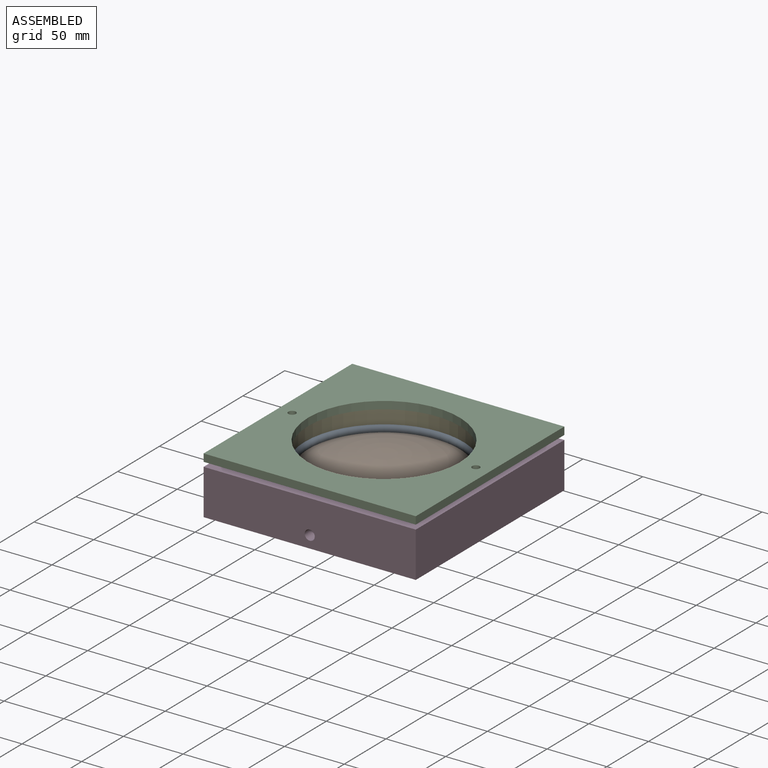
[diagram: assembled view]
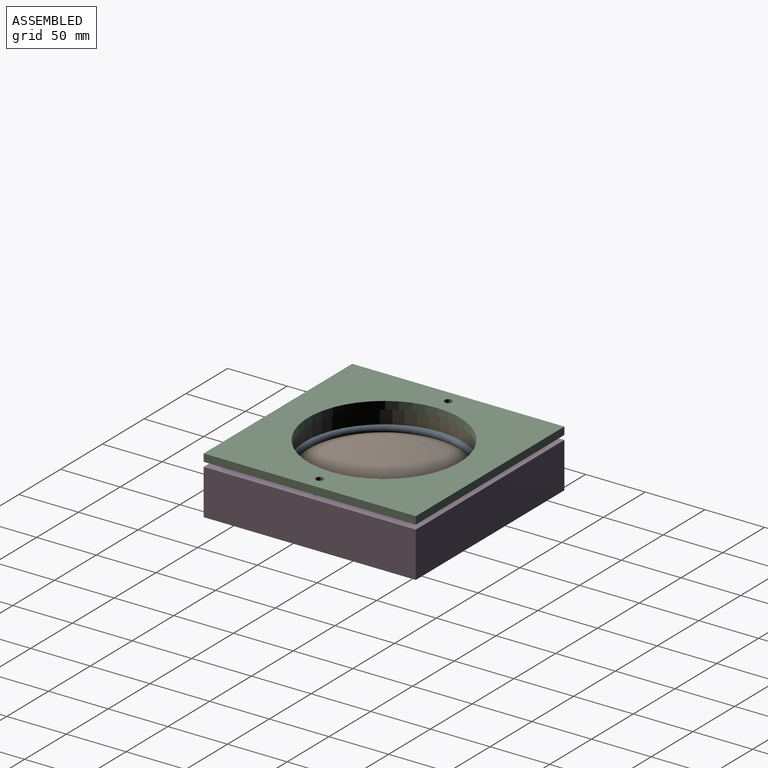
[diagram: assembled view, second angle]
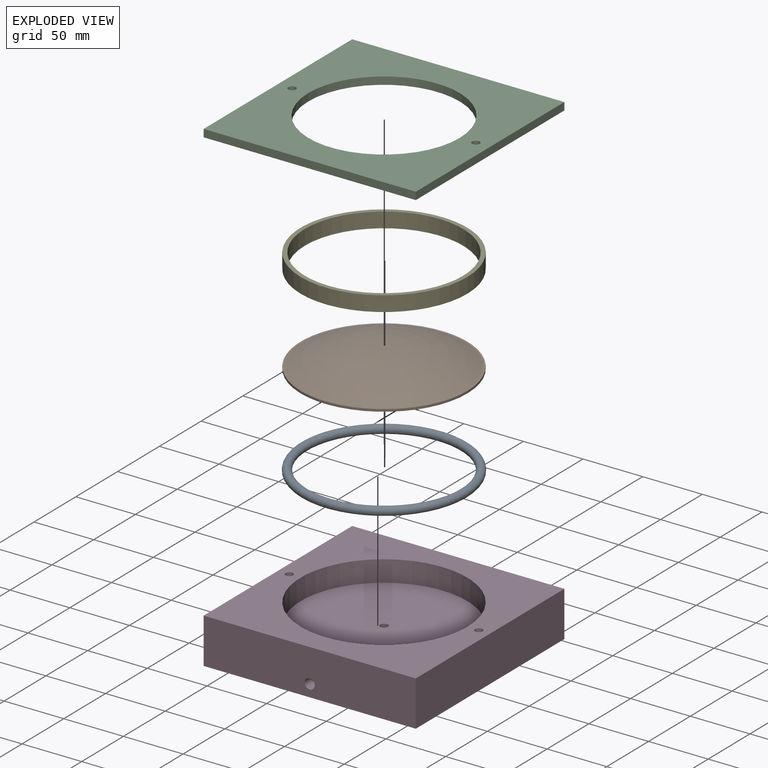
[diagram: exploded view]
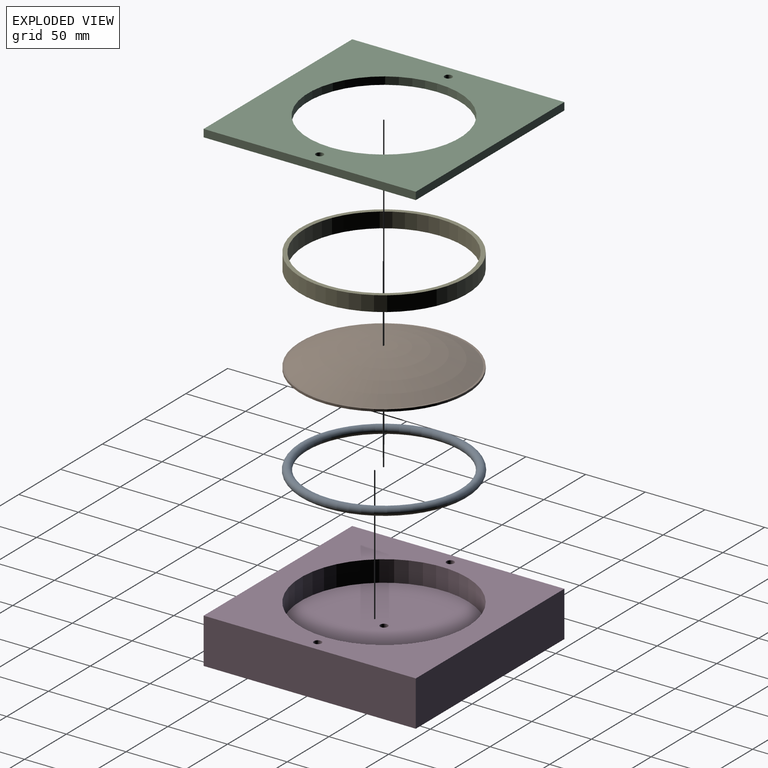
[diagram: exploded view, second angle]
ASSEMBLY  parts=5 mates=4
PART A: 1 faces, bbox 151.9x151.9x7 mm
  f0: torus R=66.67mm, axis (0,0,1), area 9193mm2
PART B: 5 faces, bbox 139.7x139.7x17.8 mm
  f0: plane 139.7x139.7mm, normal (0,0,1), area 661.6mm2, adj f1,f4
  f1: cylinder r=69.85mm len=139.7mm, axis (0,0,1), area 836.1mm2, adj f0,f2
  f2: plane 139.7x139.7mm, normal (0,0,-1), area 3702mm2, adj f1,f3
  f3: torus R=3.12mm, axis (0,0,1), area 12150.2mm2, adj f2
  f4: torus R=3.56mm, axis (0,0,1), area 15520.3mm2, adj f0
PART C: 9 faces, bbox 177.8x177.8x6.4 mm
  f0: plane 177.8x177.8mm, normal (0,0,1), area 18881.8mm2, adj f2,f3,f4,f5,f6,f7,f8
  f1: plane 177.8x177.8mm, normal (0,0,-1), area 18881.8mm2, adj f2,f3,f4,f5,f6,f7,f8
  f2: plane 177.8x6.35mm, normal (0,1,0), area 1129mm2, adj f0,f1,f3,f5
  f3: plane 177.8x6.35mm, normal (-1,0,0), area 1129mm2, adj f0,f1,f2,f4
  f4: plane 177.8x6.35mm, normal (0,-1,0), area 1129mm2, adj f0,f1,f3,f5
  f5: plane 177.8x6.35mm, normal (1,0,0), area 1129mm2, adj f0,f1,f2,f4
  f6: cylinder r=63.5mm len=127mm, axis (0,0,1), area 2533.5mm2, adj f0,f1
  f7: cylinder r=3.17mm len=6.35mm, axis (0,0,1), area 126.7mm2, adj f0,f1
  f8: cylinder r=3.17mm len=6.35mm, axis (0,0,1), area 126.7mm2, adj f0,f1
PART D: 15 faces, bbox 177.8x177.8x38.1 mm
  f0: plane 177.8x177.8mm, normal (0,0,1), area 16221.6mm2, adj f1,f2,f3,f4,f6,f11,f13
  f1: plane 177.8x38.1mm, normal (0,1,0), area 6774.2mm2, adj f0,f2,f4,f5
  f2: plane 177.8x38.1mm, normal (-1,0,0), area 6774.2mm2, adj f0,f1,f3,f5
  f3: plane 177.8x38.1mm, normal (0,-1,0), area 6718.3mm2, adj f0,f2,f4,f5,f8
  f4: plane 177.8x38.1mm, normal (1,0,0), area 6774.2mm2, adj f0,f1,f3,f5
  f5: plane 177.8x177.8mm, normal (0,0,-1), area 31612.8mm2, adj f1,f2,f3,f4
  f6: cylinder r=69.85mm len=139.7mm, axis (0,0,1), area 7803.3mm2, adj f0,f7
  f7: plane 139.7x139.7mm, normal (0,0,1), area 15296.2mm2, adj f6,f10
  f8: cylinder r=4.22mm len=95.25mm, axis (0,-1,0), area 2488.8mm2, adj f3,f9,f10
  f9: plane 8.43x8.43mm, normal (0,-1,0), area 55.9mm2, adj f8
  f10: cylinder r=3.17mm len=7.39mm, axis (0,0,1), area 132.2mm2, adj f7,f8
  f11: cylinder r=3.17mm len=12.7mm, axis (0,0,1), area 253.4mm2, adj f0,f12
  f12: plane 6.35x6.35mm, normal (0,0,1), area 31.7mm2, adj f11
  f13: cylinder r=3.17mm len=12.7mm, axis (0,0,1), area 253.4mm2, adj f0,f14
  f14: plane 6.35x6.35mm, normal (0,0,1), area 31.7mm2, adj f13
PART E: 4 faces, bbox 139.7x139.7x12.7 mm
  f0: cylinder r=66.36mm len=132.72mm, axis (0,0,-1), area 5295.1mm2, adj f2,f3
  f1: cylinder r=69.85mm len=139.7mm, axis (0,0,-1), area 5573.8mm2, adj f2,f3
  f2: plane 139.7x139.7mm, normal (0,0,1), area 1494.5mm2, adj f0,f1
  f3: plane 139.7x139.7mm, normal (0,0,-1), area 1494.5mm2, adj f0,f1
PLACE A t=(23.17,57.37,278.78)mm
PLACE B t=(23.17,57.37,273.39)mm
PLACE C t=(23.17,57.37,294.98)mm
PLACE D t=(23.17,57.37,253.07)mm
PLACE E t=(23.17,57.37,282.28)mm
MATE fastened E.f0 <-> A.f0  axis (0,0,-1) through (23.17,57.37,282.28)mm
MATE fastened B.f1 <-> D.f6  axis (0,0,-1) through (23.17,57.37,273.39)mm
MATE fastened A.f0 <-> B.f1  axis (0,0,1) through (23.17,57.37,278.78)mm
MATE fastened E.f1 <-> C.f6  axis (0,0,1) through (23.17,57.37,294.98)mm
